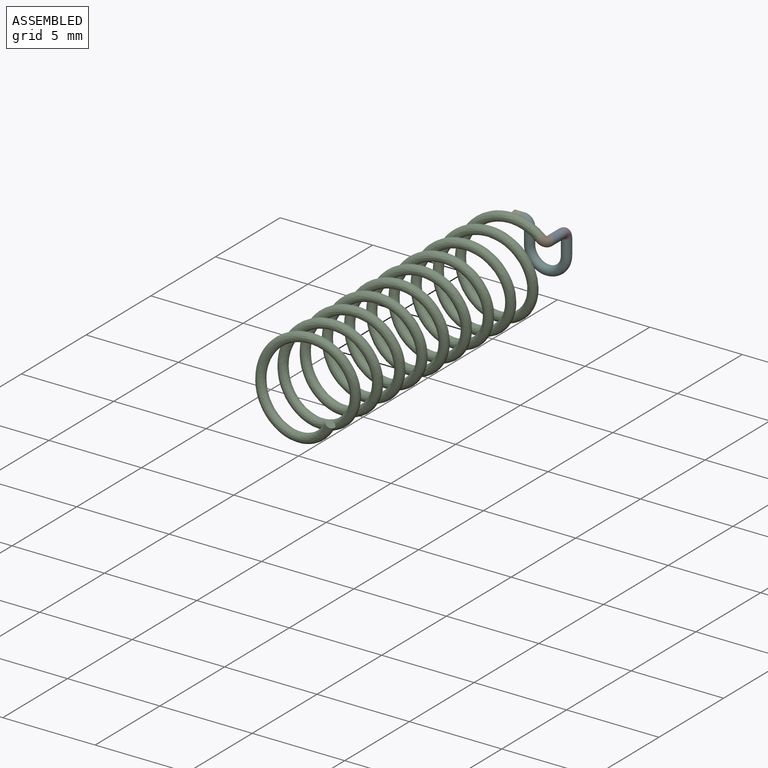
[diagram: assembled view]
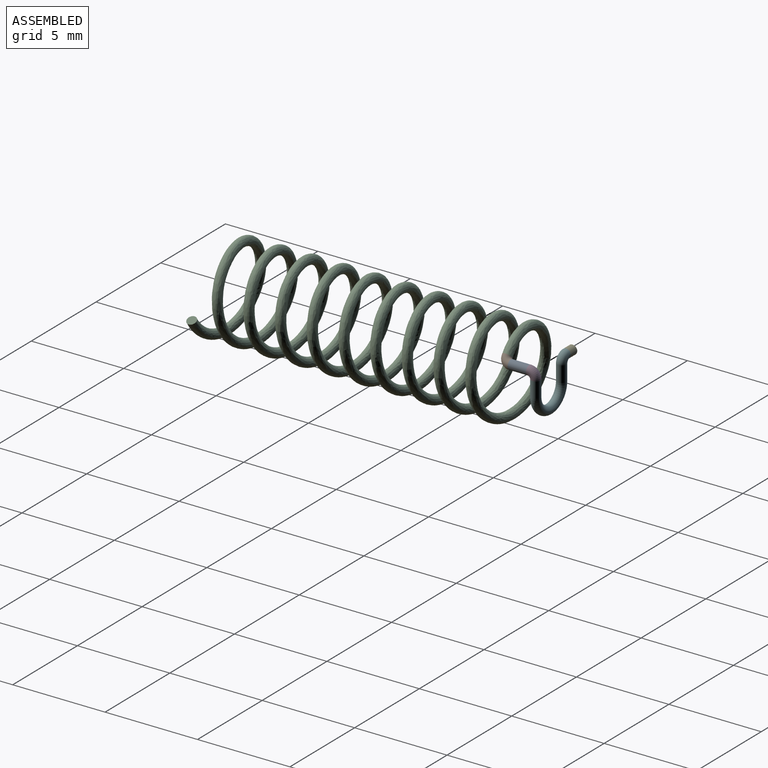
[diagram: assembled view, second angle]
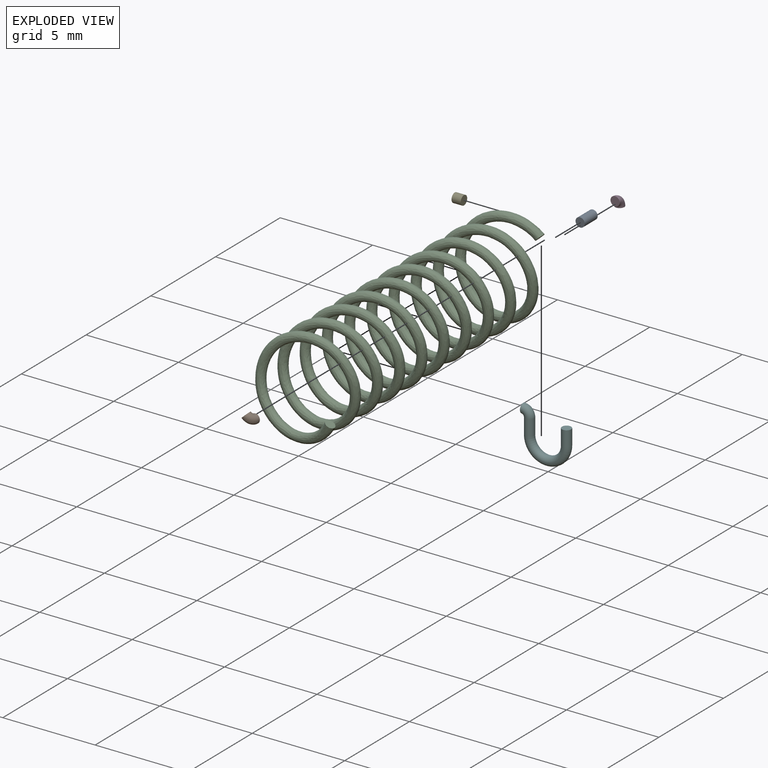
[diagram: exploded view]
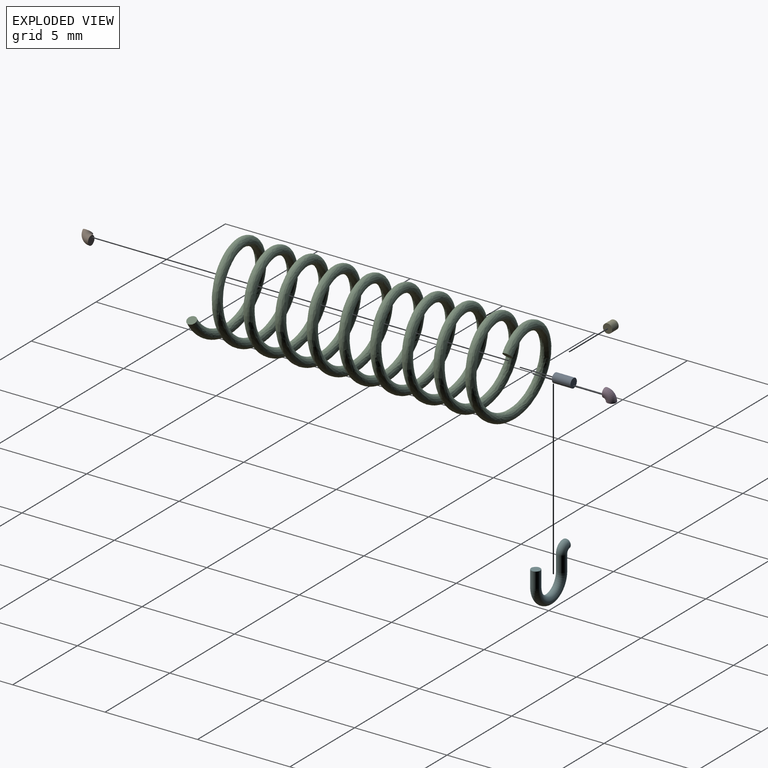
[diagram: exploded view, second angle]
ASSEMBLY  parts=6 mates=5
PART A: 3 faces, bbox 0.5x0.5x1 mm
  f0: cylinder r=0.25mm len=1mm, axis (0,0,-1), area 1.6mm2, adj f1,f2
  f1: plane 0.5x0.5mm, normal (0,0,1), area 0.2mm2, adj f0
  f2: plane 0.5x0.5mm, normal (0,0,-1), area 0.2mm2, adj f0
PART B: 3 faces, bbox 0.6x0.5x0.6 mm
  f0: plane 0.5x0.5mm, normal (0,0,-1), area 0.2mm2, adj f2
  f1: plane 0.5x0.5mm, normal (1,0,0), area 0.2mm2, adj f2
  f2: torus R=0.35mm, axis (0,1,0), area 0.9mm2, adj f0,f1
PART C: 3 faces, bbox 4.6x17.4x4.8 mm
  f0: plane 0.57x0.57mm, normal (0,0,1), area 0.2mm2, adj f2
  f1: plane 0.58x0.56mm, normal (0.95,0,-0.31), area 0.2mm2, adj f2
  f2: bspline ~17.3x4.75mm, area 218mm2, adj f0,f1
PART D: same geometry as B
PART E: 3 faces, bbox 0.5x0.5x0.5 mm
  f0: cylinder r=0.25mm len=0.5mm, axis (0,0,-1), area 0.8mm2, adj f1,f2
  f1: plane 0.5x0.5mm, normal (0,0,1), area 0.2mm2, adj f0
  f2: plane 0.5x0.5mm, normal (0,0,-1), area 0.2mm2, adj f0
PART F: 6 faces, bbox 2.7x0.5x2.9 mm
  f0: plane 0.5x0.5mm, normal (-1,0,0), area 0.2mm2, adj f2
  f1: plane 0.5x0.5mm, normal (0,0,1), area 0.2mm2, adj f5
  f2: torus R=0.35mm, axis (0,1,0), area 0.9mm2, adj f0,f3
  f3: cylinder r=0.25mm len=0.85mm, axis (0,0,-1), area 1.3mm2, adj f2,f4
  f4: torus R=1mm, axis (0,-1,0), area 4.9mm2, adj f3,f5
  f5: cylinder r=0.25mm len=0.85mm, axis (0,0,1), area 1.3mm2, adj f1,f4
PLACE A rot(axis=(0.58,0.58,-0.58),120deg) t=(1,-0.35,0.25)mm
PLACE B rot(axis=(0.28,-0.68,0.68),148.6deg) t=(1,-1.35,0.25)mm
PLACE C rot(axis=(-0.92,0,-0.38),180deg) t=(-0.84,-1.7,-1.09)mm
PLACE D rot(axis=(0,0,-1),90deg) t=(1,0,-0.1)mm
PLACE E rot(axis=(-0.71,0,0.71),180deg) t=(-1.35,0,0.25)mm
PLACE F at identity fixed
MATE fastened B.f1 <-> C.f0  axis (-0.71,0,0.71) through (0.75,-1.7,0.5)mm
MATE fastened B.f0 <-> A.f0  axis (0,1,0) through (1,-1.35,0.25)mm
MATE fastened D.f1 <-> A.f0  axis (0,-1,0) through (1,-0.35,0.25)mm
MATE fastened E.f0 <-> F.f0  axis (1,0,0) through (-1.35,0,0.25)mm
MATE fastened F.f5 <-> D.f0  axis (0,0,1) through (1,0,-0.1)mm
